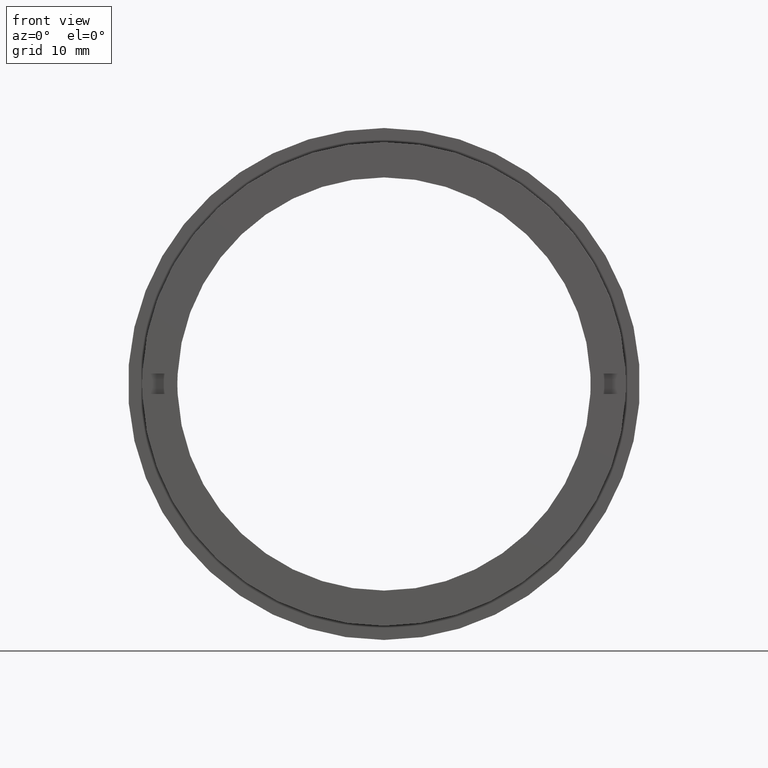
[diagram: clean part render]
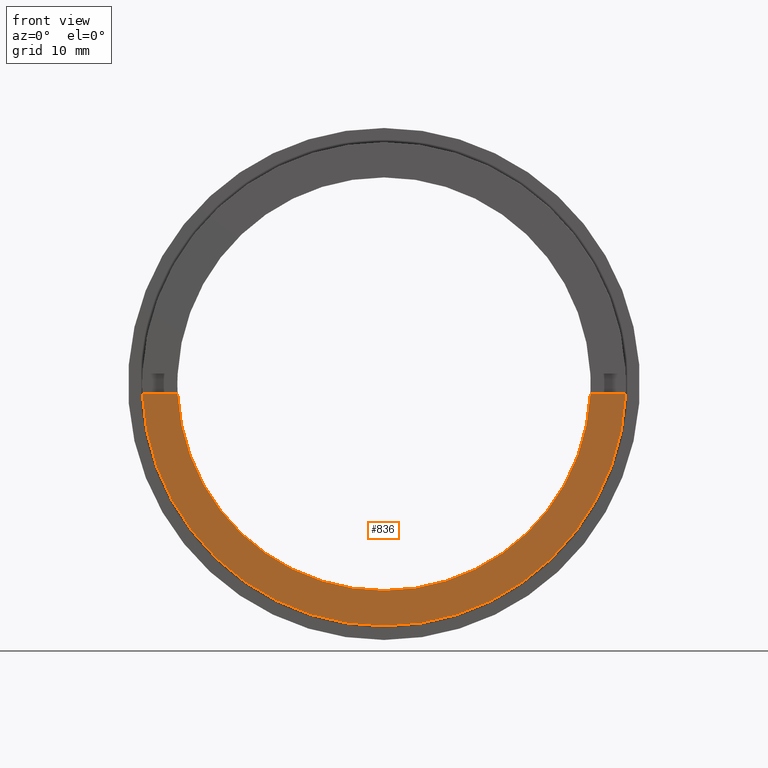
[diagram: same view with one face highlighted and labeled with its STEP entity id]
A machine part, front view. The second image highlights one B-rep face of the part: STEP entity #836.
In plain terms, the highlighted planar face has unit normal (0, -1, 0).
Its self-contained STEP definition (entity closure, byte-faithful):
#29 = VERTEX_POINT ( 'NONE', #487 ) ;
#52 = ORIENTED_EDGE ( 'NONE', *, *, #391, .T. ) ;
#71 = LINE ( 'NONE', #328, #987 ) ;
#78 = CARTESIAN_POINT ( 'NONE',  ( -20.47559522944326500, 0.0000000000000000000, -1.000000000000000000 ) ) ;
#81 = CIRCLE ( 'NONE', #410, 20.49999999999999600 ) ;
#82 = DIRECTION ( 'NONE',  ( 0.0000000000000000000, 0.0000000000000000000, 1.000000000000000000 ) ) ;
#131 = CIRCLE ( 'NONE', #842, 23.99999999999999600 ) ;
#150 = EDGE_CURVE ( 'NONE', #777, #285, #71, .T. ) ;
#160 = FACE_OUTER_BOUND ( 'NONE', #752, .T. ) ;
#171 = CARTESIAN_POINT ( 'NONE',  ( 2.939152317953647500E-015, 0.0000000000000000000, -23.99999999999999600 ) ) ;
#177 = DIRECTION ( 'NONE',  ( 1.000000000000000000, 0.0000000000000000000, 0.0000000000000000000 ) ) ;
#191 = CARTESIAN_POINT ( 'NONE',  ( 0.0000000000000000000, 0.0000000000000000000, 0.0000000000000000000 ) ) ;
#215 = DIRECTION ( 'NONE',  ( 0.0000000000000000000, 0.0000000000000000000, 1.000000000000000000 ) ) ;
#278 = CARTESIAN_POINT ( 'NONE',  ( 0.0000000000000000000, 0.0000000000000000000, 0.0000000000000000000 ) ) ;
#285 = VERTEX_POINT ( 'NONE', #78 ) ;
#294 = EDGE_CURVE ( 'NONE', #725, #777, #636, .T. ) ;
#328 = CARTESIAN_POINT ( 'NONE',  ( -23.99999999999999600, 0.0000000000000000000, -1.000000000000000000 ) ) ;
#333 = EDGE_CURVE ( 'NONE', #595, #29, #372, .T. ) ;
#367 = DIRECTION ( 'NONE',  ( 0.0000000000000000000, 0.0000000000000000000, 1.000000000000000000 ) ) ;
#372 = LINE ( 'NONE', #525, #1079 ) ;
#391 = EDGE_CURVE ( 'NONE', #595, #808, #81, .T. ) ;
#401 = CARTESIAN_POINT ( 'NONE',  ( 2.510525938252074100E-015, 0.0000000000000000000, -20.49999999999999600 ) ) ;
#410 = AXIS2_PLACEMENT_3D ( 'NONE', #278, #899, #367 ) ;
#423 = DIRECTION ( 'NONE',  ( 0.0000000000000000000, -1.000000000000000000, 0.0000000000000000000 ) ) ;
#440 = ORIENTED_EDGE ( 'NONE', *, *, #829, .F. ) ;
#487 = CARTESIAN_POINT ( 'NONE',  ( 23.97915761656359700, 0.0000000000000000000, -1.000000000000000000 ) ) ;
#492 = AXIS2_PLACEMENT_3D ( 'NONE', #582, #845, #215 ) ;
#504 = CARTESIAN_POINT ( 'NONE',  ( -23.99999999999999600, 0.0000000000000000000, 0.0000000000000000000 ) ) ;
#514 = ORIENTED_EDGE ( 'NONE', *, *, #150, .F. ) ;
#525 = CARTESIAN_POINT ( 'NONE',  ( -23.99999999999999600, 0.0000000000000000000, -1.000000000000000000 ) ) ;
#582 = CARTESIAN_POINT ( 'NONE',  ( 0.0000000000000000000, 0.0000000000000000000, 0.0000000000000000000 ) ) ;
#595 = VERTEX_POINT ( 'NONE', #1001 ) ;
#599 = ORIENTED_EDGE ( 'NONE', *, *, #1134, .T. ) ;
#616 = DIRECTION ( 'NONE',  ( -0.0000000000000000000, 1.000000000000000000, -0.0000000000000000000 ) ) ;
#636 = CIRCLE ( 'NONE', #1027, 23.99999999999999600 ) ;
#640 = ORIENTED_EDGE ( 'NONE', *, *, #333, .F. ) ;
#672 = CARTESIAN_POINT ( 'NONE',  ( -23.97915761656359700, 0.0000000000000000000, -1.000000000000000000 ) ) ;
#723 = DIRECTION ( 'NONE',  ( 0.0000000000000000000, 0.0000000000000000000, 1.000000000000000000 ) ) ;
#725 = VERTEX_POINT ( 'NONE', #171 ) ;
#752 = EDGE_LOOP ( 'NONE', ( #514, #846, #440, #640, #52, #599 ) ) ;
#777 = VERTEX_POINT ( 'NONE', #672 ) ;
#791 = PLANE ( 'NONE',  #1019 ) ;
#808 = VERTEX_POINT ( 'NONE', #401 ) ;
#829 = EDGE_CURVE ( 'NONE', #29, #725, #131, .T. ) ;
#836 = ADVANCED_FACE ( 'NONE', ( #160 ), #791, .T. ) ;
#842 = AXIS2_PLACEMENT_3D ( 'NONE', #191, #1045, #723 ) ;
#845 = DIRECTION ( 'NONE',  ( -0.0000000000000000000, 1.000000000000000000, -0.0000000000000000000 ) ) ;
#846 = ORIENTED_EDGE ( 'NONE', *, *, #294, .F. ) ;
#899 = DIRECTION ( 'NONE',  ( -0.0000000000000000000, 1.000000000000000000, -0.0000000000000000000 ) ) ;
#947 = DIRECTION ( 'NONE',  ( 1.000000000000000000, 0.0000000000000000000, 0.0000000000000000000 ) ) ;
#960 = DIRECTION ( 'NONE',  ( 0.0000000000000000000, -0.0000000000000000000, -1.000000000000000000 ) ) ;
#987 = VECTOR ( 'NONE', #947, 1000.000000000000000 ) ;
#1001 = CARTESIAN_POINT ( 'NONE',  ( 20.47559522944326500, 0.0000000000000000000, -1.000000000000000000 ) ) ;
#1019 = AXIS2_PLACEMENT_3D ( 'NONE', #504, #423, #960 ) ;
#1027 = AXIS2_PLACEMENT_3D ( 'NONE', #1143, #616, #82 ) ;
#1045 = DIRECTION ( 'NONE',  ( -0.0000000000000000000, 1.000000000000000000, -0.0000000000000000000 ) ) ;
#1079 = VECTOR ( 'NONE', #177, 1000.000000000000000 ) ;
#1122 = CIRCLE ( 'NONE', #492, 20.49999999999999600 ) ;
#1134 = EDGE_CURVE ( 'NONE', #808, #285, #1122, .T. ) ;
#1143 = CARTESIAN_POINT ( 'NONE',  ( 0.0000000000000000000, 0.0000000000000000000, 0.0000000000000000000 ) ) ;